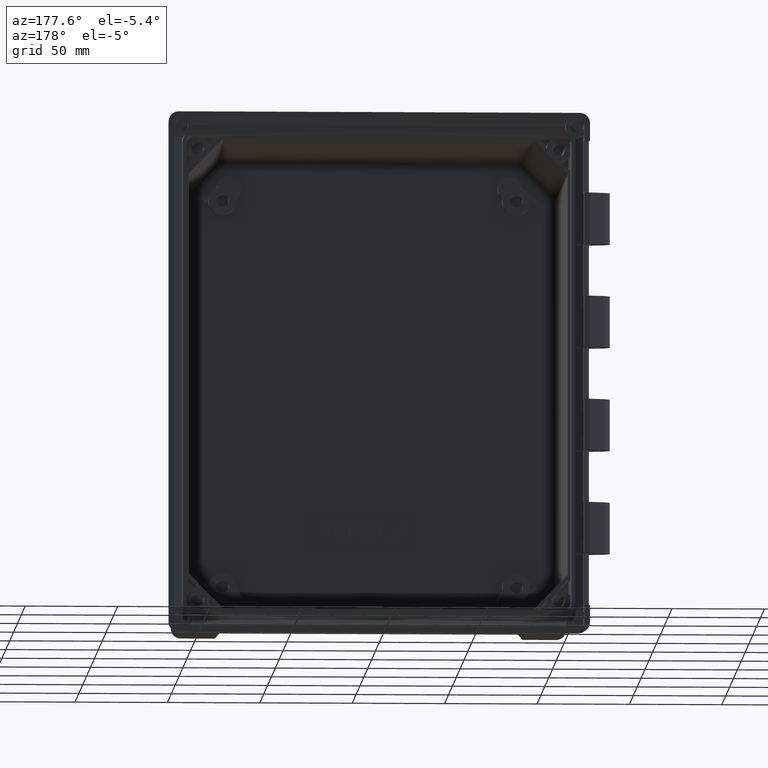
[diagram: clean part render]
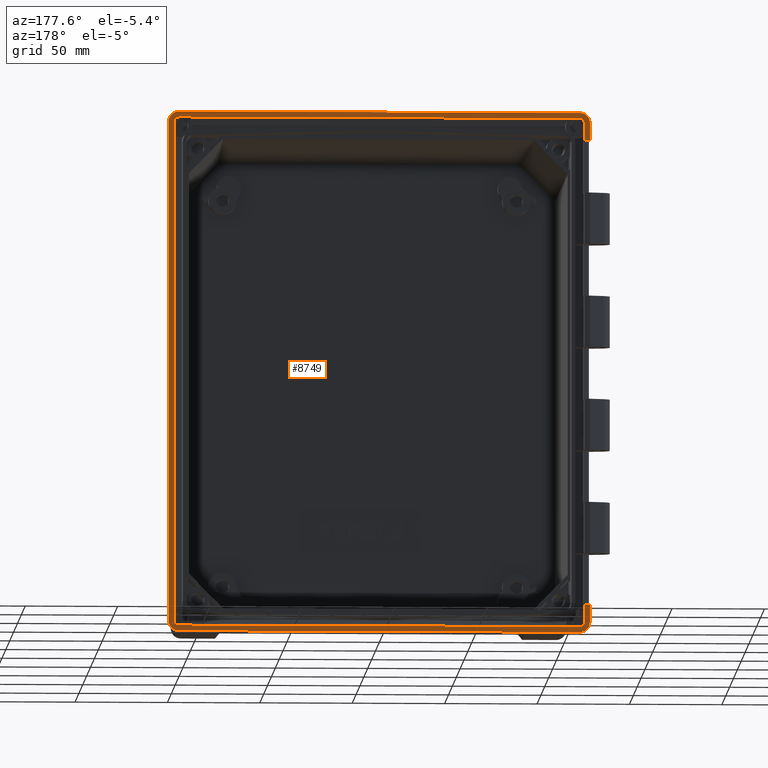
[diagram: same view with one face highlighted and labeled with its STEP entity id]
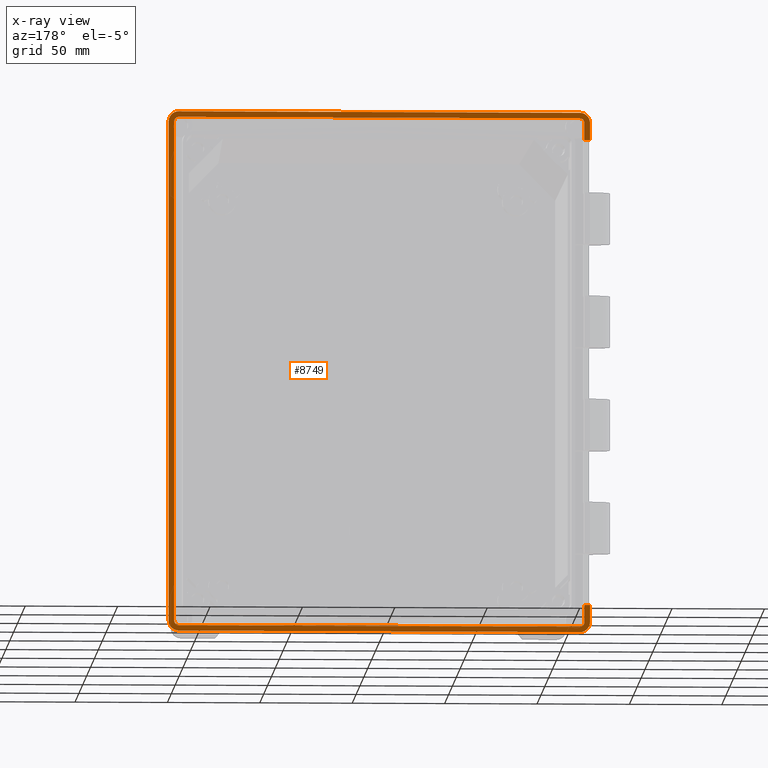
[diagram: x-ray of the same camera — body ghosted, the highlighted face saturated]
A machine part, auxiliary view. The second image highlights one B-rep face of the part: STEP entity #8749.
The next image is the same camera in x-ray: the body ghosted, the highlighted face saturated — about 0% of this face is hidden behind the body in this view.
In plain terms, the highlighted planar face has unit normal (0, 1, 0).
Its self-contained STEP definition (entity closure, byte-faithful):
#701=CARTESIAN_POINT('',(-1.109981713712E2,-3.228389407658E-10,
1.354996943092E2));
#702=CARTESIAN_POINT('',(-1.109981713712E2,-3.228389407658E-10,
1.357690943543E2));
#703=CARTESIAN_POINT('',(-1.109164144159E2,1.467042301922E-10,
1.362796803426E2));
#704=CARTESIAN_POINT('',(-1.105531237532E2,-2.920639452420E-11,
1.369956905616E2));
#705=CARTESIAN_POINT('',(-1.099890592396E2,-2.987865209545E-11,
1.375576596647E2));
#706=CARTESIAN_POINT('',(-1.092750635419E2,1.487210029060E-10,
1.379174861581E2));
#707=CARTESIAN_POINT('',(-1.087672437067E2,-3.270965720503E-10,
1.379981714032E2));
#708=CARTESIAN_POINT('',(-1.084996942671E2,-3.270965720503E-10,
1.379981714032E2));
#710=DIRECTION('',(1.E0,0.E0,0.E0));
#711=VECTOR('',#710,2.169993885342E2);
#712=CARTESIAN_POINT('',(-1.084996942671E2,-3.270965720503E-10,
1.379981714032E2));
#713=LINE('',#712,#711);
#714=CARTESIAN_POINT('',(1.084996942671E2,-3.270383963638E-10,
1.379981714032E2));
#715=CARTESIAN_POINT('',(1.087690943629E2,-3.270383963638E-10,
1.379981714032E2));
#716=CARTESIAN_POINT('',(1.092796803599E2,1.487956970112E-10,1.379164145542E2));
#717=CARTESIAN_POINT('',(1.099956905125E2,-3.022734499350E-11,
1.375531238447E2));
#718=CARTESIAN_POINT('',(1.105576596250E2,-2.788631703722E-11,
1.369890592326E2));
#719=CARTESIAN_POINT('',(1.109174860419E2,1.417726131424E-10,1.362750634510E2));
#720=CARTESIAN_POINT('',(1.109981713714E2,-3.122118859740E-10,
1.357672436416E2));
#721=CARTESIAN_POINT('',(1.109981713712E2,-3.122118859740E-10,
1.354996942902E2));
#723=DIRECTION('',(2.648154178044E-14,-6.846855066028E-13,-1.E0));
#724=VECTOR('',#723,2.709993885809E2);
#725=CARTESIAN_POINT('',(1.109981713712E2,-3.122118859740E-10,
1.354996942902E2));
#726=LINE('',#725,#724);
#727=DIRECTION('',(-1.E0,3.037483251381E-14,0.E0));
#728=VECTOR('',#727,2.169993885344E2);
#729=CARTESIAN_POINT('',(1.084996942673E2,-5.043519675970E-10,
-1.379981714032E2));
#730=LINE('',#729,#728);
#731=CARTESIAN_POINT('',(-1.084996942671E2,-4.977606475146E-10,
-1.379981714032E2));
#732=CARTESIAN_POINT('',(-1.087690943629E2,-4.977606475146E-10,
-1.379981714032E2));
#733=CARTESIAN_POINT('',(-1.092796803599E2,2.261917734454E-10,
-1.379164145544E2));
#734=CARTESIAN_POINT('',(-1.099956905125E2,-4.503023578685E-11,
-1.375531238440E2));
#735=CARTESIAN_POINT('',(-1.105576596250E2,-4.607083029799E-11,
-1.369890592350E2));
#736=CARTESIAN_POINT('',(-1.109174860420E2,2.293135569788E-10,
-1.362750634420E2));
#737=CARTESIAN_POINT('',(-1.109981713711E2,-5.043510794186E-10,
-1.357672436609E2));
#738=CARTESIAN_POINT('',(-1.109981713712E2,-5.043510794186E-10,
-1.354996943095E2));
#740=DIRECTION('',(-5.211276414129E-11,5.423311308816E-11,1.E0));
#741=VECTOR('',#740,9.299694352012E0);
#742=CARTESIAN_POINT('',(-1.109981713712E2,-5.043510794186E-10,
-1.354996943095E2));
#743=LINE('',#742,#741);
#744=DIRECTION('',(-7.333520705188E-12,1.848814913038E-10,-1.E0));
#745=VECTOR('',#744,9.303350495680E0);
#746=CARTESIAN_POINT('',(-1.139999999997E2,0.E0,-1.261999999586E2));
#747=LINE('',#746,#745);
#748=CARTESIAN_POINT('',(-1.139999999992E2,0.E0,-1.355033504700E2));
#749=CARTESIAN_POINT('',(-1.139999999961E2,0.E0,-1.364194587227E2));
#750=CARTESIAN_POINT('',(-1.136026724634E2,0.E0,-1.378543477013E2));
#751=CARTESIAN_POINT('',(-1.124714567086E2,0.E0,-1.394714567129E2));
#752=CARTESIAN_POINT('',(-1.108543476958E2,0.E0,-1.406026724659E2));
#753=CARTESIAN_POINT('',(-1.094194587167E2,0.E0,-1.409999999971E2));
#754=CARTESIAN_POINT('',(-1.085033504640E2,0.E0,-1.409999999992E2));
#756=CARTESIAN_POINT('',(1.085033504640E2,0.E0,-1.409999999992E2));
#757=CARTESIAN_POINT('',(1.094194587167E2,0.E0,-1.409999999971E2));
#758=CARTESIAN_POINT('',(1.108543476958E2,0.E0,-1.406026724659E2));
#759=CARTESIAN_POINT('',(1.124714567086E2,0.E0,-1.394714567129E2));
#760=CARTESIAN_POINT('',(1.136026724634E2,0.E0,-1.378543477013E2));
#761=CARTESIAN_POINT('',(1.139999999961E2,0.E0,-1.364194587227E2));
#762=CARTESIAN_POINT('',(1.139999999992E2,0.E0,-1.355033504700E2));
#764=CARTESIAN_POINT('',(1.14E2,0.E0,1.355033504700E2));
#765=CARTESIAN_POINT('',(1.139999999969E2,0.E0,1.364194587229E2));
#766=CARTESIAN_POINT('',(1.136026724642E2,0.E0,1.378543477018E2));
#767=CARTESIAN_POINT('',(1.124714567093E2,0.E0,1.394714567136E2));
#768=CARTESIAN_POINT('',(1.108543476962E2,0.E0,1.406026724668E2));
#769=CARTESIAN_POINT('',(1.094194587169E2,0.E0,1.409999999979E2));
#770=CARTESIAN_POINT('',(1.085033504640E2,0.E0,1.41E2));
#772=CARTESIAN_POINT('',(-1.085033504640E2,0.E0,1.41E2));
#773=CARTESIAN_POINT('',(-1.094194587168E2,0.E0,1.409999999979E2));
#774=CARTESIAN_POINT('',(-1.108543476961E2,0.E0,1.406026724666E2));
#775=CARTESIAN_POINT('',(-1.124714567091E2,0.E0,1.394714567134E2));
#776=CARTESIAN_POINT('',(-1.136026724641E2,0.E0,1.378543477016E2));
#777=CARTESIAN_POINT('',(-1.139999999969E2,0.E0,1.364194587228E2));
#778=CARTESIAN_POINT('',(-1.14E2,0.E0,1.355033504700E2));
#780=DIRECTION('',(3.664774610160E-11,-1.732232405013E-10,-1.E0));
#781=VECTOR('',#780,9.303350481143E0);
#782=CARTESIAN_POINT('',(-1.140000000001E2,1.611556813922E-9,1.355033504546E2));
#783=LINE('',#782,#781);
#784=DIRECTION('',(-1.219117476532E-10,-3.471503741419E-11,1.E0));
#785=VECTOR('',#784,9.299694336301E0);
#786=CARTESIAN_POINT('',(-1.109981713701E2,0.E0,1.261999999729E2));
#787=LINE('',#786,#785);
#801=DIRECTION('',(-1.E0,0.E0,1.751557062318E-10));
#802=VECTOR('',#801,3.001828629620E0);
#803=CARTESIAN_POINT('',(-1.109981713701E2,0.E0,1.261999999729E2));
#804=LINE('',#803,#802);
#1176=DIRECTION('',(1.005956812066E-12,-1.995107475348E-13,1.E0));
#1177=VECTOR('',#1176,2.710067008708E2);
#1178=CARTESIAN_POINT('',(1.139999999998E2,1.704832127321E-9,
-1.355033504360E2));
#1179=LINE('',#1178,#1177);
#1222=DIRECTION('',(-1.E0,0.E0,0.E0));
#1223=VECTOR('',#1222,2.170067008753E2);
#1224=CARTESIAN_POINT('',(1.085033504376E2,1.637851928156E-9,1.410000000001E2));
#1225=LINE('',#1224,#1223);
#1268=DIRECTION('',(1.E0,6.997429259468E-14,0.E0));
#1269=VECTOR('',#1268,2.170067008765E2);
#1270=CARTESIAN_POINT('',(-1.085033504385E2,1.704832423381E-9,
-1.409999999998E2));
#1271=LINE('',#1270,#1269);
#1329=DIRECTION('',(1.E0,0.E0,3.503350829829E-10));
#1330=VECTOR('',#1329,3.001828627995E0);
#1331=CARTESIAN_POINT('',(-1.139999999997E2,0.E0,-1.261999999586E2));
#1332=LINE('',#1331,#1330);
#3811=CARTESIAN_POINT('',(1.084996942673E2,-5.043519675970E-10,
-1.379981714032E2));
#3812=CARTESIAN_POINT('',(1.087738871420E2,-5.043519675970E-10,
-1.379981714031E2));
#3813=CARTESIAN_POINT('',(1.092921572656E2,2.293139635294E-10,
-1.379128714452E2));
#3814=CARTESIAN_POINT('',(1.100152453272E2,-4.607092095735E-11,
-1.375413572260E2));
#3815=CARTESIAN_POINT('',(1.105761922375E2,-4.503027969997E-11,
-1.369616040285E2));
#3816=CARTESIAN_POINT('',(1.109158689626E2,2.261920397572E-10,
-1.362710090591E2));
#3817=CARTESIAN_POINT('',(1.109981713712E2,-4.977612396336E-10,
-1.357658883954E2));
#3818=CARTESIAN_POINT('',(1.109981713712E2,-4.977612396336E-10,
-1.354996942906E2));
#6857=CARTESIAN_POINT('',(-1.084996942671E2,-4.977609435741E-10,
-1.379981714032E2));
#6858=VERTEX_POINT('',#6857);
#6865=CARTESIAN_POINT('',(1.084996942673E2,-5.043519675970E-10,
-1.379981714032E2));
#6866=VERTEX_POINT('',#6865);
#6881=CARTESIAN_POINT('',(-1.109981713712E2,-5.043510794186E-10,
-1.354996943095E2));
#6882=VERTEX_POINT('',#6881);
#6883=CARTESIAN_POINT('',(-1.109981713717E2,0.E0,-1.261999999575E2));
#6884=VERTEX_POINT('',#6883);
#6900=CARTESIAN_POINT('',(-1.084996942671E2,-3.270965720503E-10,
1.379981714032E2));
#6901=VERTEX_POINT('',#6900);
#6902=CARTESIAN_POINT('',(1.084996942671E2,-3.270383963638E-10,
1.379981714032E2));
#6903=VERTEX_POINT('',#6902);
#6915=CARTESIAN_POINT('',(-1.109981713712E2,-3.228386447063E-10,
1.354996943092E2));
#6916=VERTEX_POINT('',#6915);
#6924=CARTESIAN_POINT('',(-1.109981713701E2,0.E0,1.261999999729E2));
#6925=VERTEX_POINT('',#6924);
#6939=CARTESIAN_POINT('',(1.109981713712E2,-4.977609435741E-10,
-1.354996942906E2));
#6941=VERTEX_POINT('',#6939);
#6950=CARTESIAN_POINT('',(1.109981713712E2,-3.122118859740E-10,
1.354996942902E2));
#6951=VERTEX_POINT('',#6950);
#7298=CARTESIAN_POINT('',(-1.139999999997E2,0.E0,1.261999999734E2));
#7299=VERTEX_POINT('',#7298);
#7300=CARTESIAN_POINT('',(-1.140000000001E2,1.611556813922E-9,
1.355033504546E2));
#7301=VERTEX_POINT('',#7300);
#7376=CARTESIAN_POINT('',(-1.139999999998E2,1.720017609822E-9,
-1.355033504542E2));
#7377=VERTEX_POINT('',#7376);
#7378=CARTESIAN_POINT('',(-1.139999999997E2,0.E0,-1.261999999586E2));
#7379=VERTEX_POINT('',#7378);
#7380=VERTEX_POINT('',#772);
#7381=CARTESIAN_POINT('',(1.085033504376E2,1.637851928156E-9,1.410000000001E2));
#7382=VERTEX_POINT('',#7381);
#7383=VERTEX_POINT('',#764);
#7384=CARTESIAN_POINT('',(1.139999999998E2,1.704832127321E-9,
-1.355033504360E2));
#7385=VERTEX_POINT('',#7384);
#7386=VERTEX_POINT('',#756);
#7387=CARTESIAN_POINT('',(-1.085033504385E2,1.704832423381E-9,
-1.409999999998E2));
#7388=VERTEX_POINT('',#7387);
#8704=CARTESIAN_POINT('',(0.E0,0.E0,0.E0));
#8705=DIRECTION('',(0.E0,1.E0,0.E0));
#8706=DIRECTION('',(0.E0,0.E0,-1.E0));
#8707=AXIS2_PLACEMENT_3D('',#8704,#8705,#8706);
#8708=PLANE('',#8707);
#8710=ORIENTED_EDGE('',*,*,#8709,.T.);
#8712=ORIENTED_EDGE('',*,*,#8711,.T.);
#8714=ORIENTED_EDGE('',*,*,#8713,.T.);
#8716=ORIENTED_EDGE('',*,*,#8715,.T.);
#8718=ORIENTED_EDGE('',*,*,#8717,.F.);
#8719=ORIENTED_EDGE('',*,*,#8674,.T.);
#8720=ORIENTED_EDGE('',*,*,#8694,.T.);
#8722=ORIENTED_EDGE('',*,*,#8721,.T.);
#8724=ORIENTED_EDGE('',*,*,#8723,.F.);
#8726=ORIENTED_EDGE('',*,*,#8725,.T.);
#8728=ORIENTED_EDGE('',*,*,#8727,.T.);
#8730=ORIENTED_EDGE('',*,*,#8729,.T.);
#8732=ORIENTED_EDGE('',*,*,#8731,.T.);
#8734=ORIENTED_EDGE('',*,*,#8733,.T.);
#8736=ORIENTED_EDGE('',*,*,#8735,.T.);
#8738=ORIENTED_EDGE('',*,*,#8737,.T.);
#8740=ORIENTED_EDGE('',*,*,#8739,.T.);
#8742=ORIENTED_EDGE('',*,*,#8741,.T.);
#8744=ORIENTED_EDGE('',*,*,#8743,.F.);
#8746=ORIENTED_EDGE('',*,*,#8745,.T.);
#8747=EDGE_LOOP('',(#8710,#8712,#8714,#8716,#8718,#8719,#8720,#8722,#8724,#8726,
#8728,#8730,#8732,#8734,#8736,#8738,#8740,#8742,#8744,#8746));
#8748=FACE_OUTER_BOUND('',#8747,.F.);
#8749=ADVANCED_FACE('',(#8748),#8708,.T.);
#709=B_SPLINE_CURVE_WITH_KNOTS('',3,(#701,#702,#703,#704,#705,#706,#707,#708),
.UNSPECIFIED.,.F.,.F.,(4,1,1,1,1,4),(0.E0,2.E-1,4.E-1,6.E-1,8.E-1,1.E0),
.UNSPECIFIED.);
#722=B_SPLINE_CURVE_WITH_KNOTS('',3,(#714,#715,#716,#717,#718,#719,#720,#721),
.UNSPECIFIED.,.F.,.F.,(4,1,1,1,1,4),(0.E0,2.E-1,4.E-1,6.E-1,8.E-1,1.E0),
.UNSPECIFIED.);
#739=B_SPLINE_CURVE_WITH_KNOTS('',3,(#731,#732,#733,#734,#735,#736,#737,#738),
.UNSPECIFIED.,.F.,.F.,(4,1,1,1,1,4),(0.E0,2.E-1,4.E-1,6.E-1,8.E-1,1.E0),
.UNSPECIFIED.);
#755=B_SPLINE_CURVE_WITH_KNOTS('',3,(#748,#749,#750,#751,#752,#753,#754),
.UNSPECIFIED.,.F.,.F.,(4,1,1,1,4),(0.E0,2.5E-1,5.E-1,7.5E-1,1.E0),
.UNSPECIFIED.);
#763=B_SPLINE_CURVE_WITH_KNOTS('',3,(#756,#757,#758,#759,#760,#761,#762),
.UNSPECIFIED.,.F.,.F.,(4,1,1,1,4),(0.E0,2.5E-1,5.E-1,7.5E-1,1.E0),
.UNSPECIFIED.);
#771=B_SPLINE_CURVE_WITH_KNOTS('',3,(#764,#765,#766,#767,#768,#769,#770),
.UNSPECIFIED.,.F.,.F.,(4,1,1,1,4),(0.E0,2.5E-1,5.E-1,7.5E-1,1.E0),
.UNSPECIFIED.);
#779=B_SPLINE_CURVE_WITH_KNOTS('',3,(#772,#773,#774,#775,#776,#777,#778),
.UNSPECIFIED.,.F.,.F.,(4,1,1,1,4),(0.E0,2.5E-1,5.E-1,7.5E-1,1.E0),
.UNSPECIFIED.);
#3819=B_SPLINE_CURVE_WITH_KNOTS('',3,(#3811,#3812,#3813,#3814,#3815,#3816,#3817,
#3818),.UNSPECIFIED.,.F.,.F.,(4,1,1,1,1,4),(0.E0,2.E-1,4.E-1,6.E-1,8.E-1,1.E0),
.UNSPECIFIED.);
#8674=EDGE_CURVE('',#6866,#6858,#730,.T.);
#8694=EDGE_CURVE('',#6858,#6882,#739,.T.);
#8709=EDGE_CURVE('',#6916,#6901,#709,.T.);
#8711=EDGE_CURVE('',#6901,#6903,#713,.T.);
#8713=EDGE_CURVE('',#6903,#6951,#722,.T.);
#8715=EDGE_CURVE('',#6951,#6941,#726,.T.);
#8717=EDGE_CURVE('',#6866,#6941,#3819,.T.);
#8721=EDGE_CURVE('',#6882,#6884,#743,.T.);
#8723=EDGE_CURVE('',#7379,#6884,#1332,.T.);
#8725=EDGE_CURVE('',#7379,#7377,#747,.T.);
#8727=EDGE_CURVE('',#7377,#7388,#755,.T.);
#8729=EDGE_CURVE('',#7388,#7386,#1271,.T.);
#8731=EDGE_CURVE('',#7386,#7385,#763,.T.);
#8733=EDGE_CURVE('',#7385,#7383,#1179,.T.);
#8735=EDGE_CURVE('',#7383,#7382,#771,.T.);
#8737=EDGE_CURVE('',#7382,#7380,#1225,.T.);
#8739=EDGE_CURVE('',#7380,#7301,#779,.T.);
#8741=EDGE_CURVE('',#7301,#7299,#783,.T.);
#8743=EDGE_CURVE('',#6925,#7299,#804,.T.);
#8745=EDGE_CURVE('',#6925,#6916,#787,.T.);